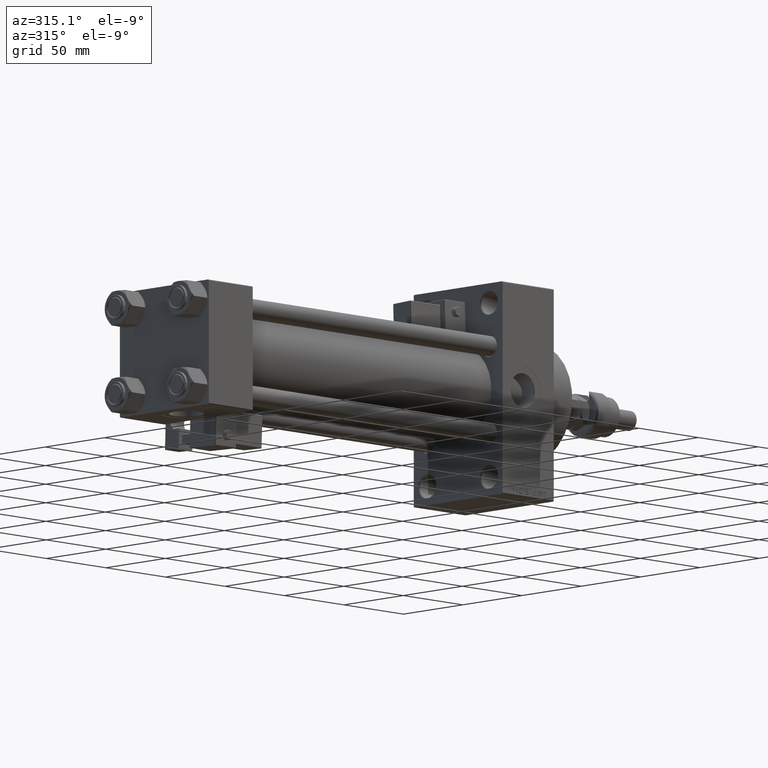
[diagram: clean part render]
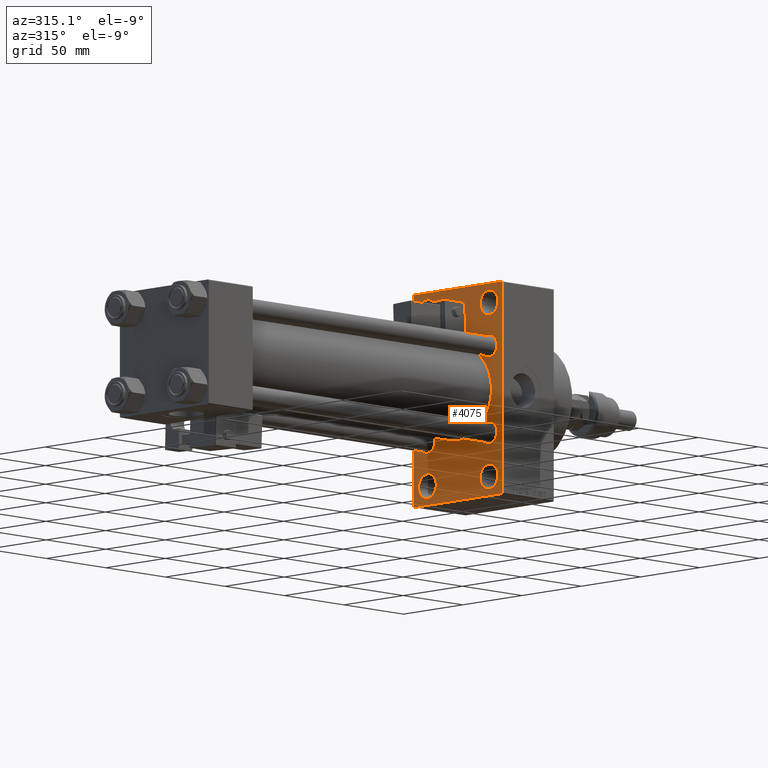
[diagram: same view with one face highlighted and labeled with its STEP entity id]
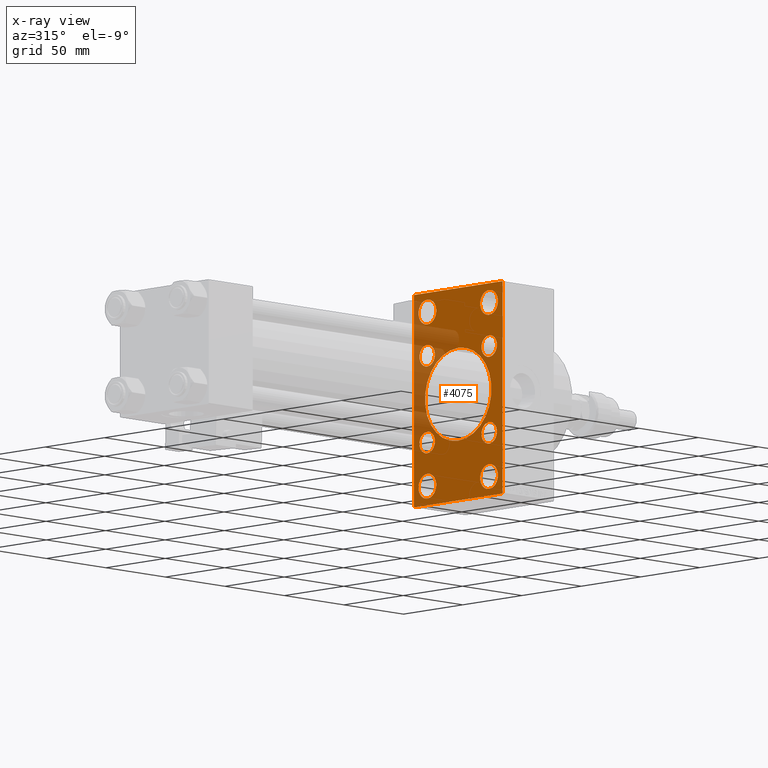
[diagram: x-ray of the same camera — body ghosted, the highlighted face saturated]
A machine part, auxiliary view. The second image highlights one B-rep face of the part: STEP entity #4075.
The next image is the same camera in x-ray: the body ghosted, the highlighted face saturated — about 20% of this face is hidden behind the body in this view.
In plain terms, the highlighted planar face has unit normal (-1, 0, 0).
Its self-contained STEP definition (entity closure, byte-faithful):
#393 = DIRECTION ( 'NONE',  ( 1.000000000000000000, -0.000000000000000000, 0.000000000000000000 ) ) ;
#936 = CIRCLE ( 'NONE', #31764, 7.499999999999951150 ) ;
#1102 = DIRECTION ( 'NONE',  ( 0.000000000000000000, 0.000000000000000000, 1.000000000000000000 ) ) ;
#1702 = AXIS2_PLACEMENT_3D ( 'NONE', #20742, #3084, #15778 ) ;
#1708 = VERTEX_POINT ( 'NONE', #47950 ) ;
#1832 = CARTESIAN_POINT ( 'NONE',  ( 247.0000000000000000, -26.14999999999999147, -26.15000000000000924 ) ) ;
#1906 = CARTESIAN_POINT ( 'NONE',  ( 247.0000000000000000, 26.00000000000000000, 52.49999999999999289 ) ) ;
#1912 = EDGE_CURVE ( 'NONE', #14378, #53678, #44422, .T. ) ;
#2233 = VECTOR ( 'NONE', #38389, 1000.000000000000000 ) ;
#2239 = DIRECTION ( 'NONE',  ( 1.000000000000000000, 0.000000000000000000, 0.000000000000000000 ) ) ;
#2488 = CARTESIAN_POINT ( 'NONE',  ( 247.0000000000000000, 26.00000000000000000, -60.00000000000002842 ) ) ;
#2514 = CARTESIAN_POINT ( 'NONE',  ( 247.0000000000000000, -2.602085213965210642E-15, 0.000000000000000000 ) ) ;
#2717 = CIRCLE ( 'NONE', #33548, 6.500000000000008882 ) ;
#2973 = EDGE_CURVE ( 'NONE', #25952, #12253, #10086, .T. ) ;
#3004 = EDGE_CURVE ( 'NONE', #41212, #53686, #51255, .T. ) ;
#3084 = DIRECTION ( 'NONE',  ( 1.000000000000000000, -0.000000000000000000, 0.000000000000000000 ) ) ;
#3213 = ORIENTED_EDGE ( 'NONE', *, *, #48000, .T. ) ;
#3750 = VERTEX_POINT ( 'NONE', #18319 ) ;
#3804 = CARTESIAN_POINT ( 'NONE',  ( 247.0000000000000000, -50.50000000000054001, -50.49999999999913314 ) ) ;
#4075 = ADVANCED_FACE ( 'NONE', ( #18986, #49036, #27239, #6550, #23385, #44341, #40742, #19803, #15381, #35805 ), #52632, .T. ) ;
#4453 = VERTEX_POINT ( 'NONE', #45096 ) ;
#4776 = DIRECTION ( 'NONE',  ( 1.000000000000000000, -0.000000000000000000, 0.000000000000000000 ) ) ;
#4869 = AXIS2_PLACEMENT_3D ( 'NONE', #1832, #27741, #18675 ) ;
#5862 = CARTESIAN_POINT ( 'NONE',  ( 247.0000000000000000, 26.14999999999999858, -19.64999999999999503 ) ) ;
#6211 = ORIENTED_EDGE ( 'NONE', *, *, #15556, .T. ) ;
#6229 = DIRECTION ( 'NONE',  ( 0.000000000000000000, 0.000000000000000000, 1.000000000000000000 ) ) ;
#6521 = DIRECTION ( 'NONE',  ( -0.000000000000000000, 0.7071067811865524577, 0.7071067811865426878 ) ) ;
#6550 = FACE_BOUND ( 'NONE', #36690, .T. ) ;
#6920 = VERTEX_POINT ( 'NONE', #24168 ) ;
#7560 = ORIENTED_EDGE ( 'NONE', *, *, #12033, .T. ) ;
#7755 = EDGE_CURVE ( 'NONE', #41212, #22244, #11884, .T. ) ;
#8498 = CIRCLE ( 'NONE', #39332, 6.500000000000008882 ) ;
#8530 = VECTOR ( 'NONE', #6521, 1000.000000000000000 ) ;
#8592 = DIRECTION ( 'NONE',  ( -0.000000000000000000, -0.7071067811865574537, -0.7071067811865376918 ) ) ;
#8655 = DIRECTION ( 'NONE',  ( 0.000000000000000000, 0.000000000000000000, 1.000000000000000000 ) ) ;
#8760 = EDGE_LOOP ( 'NONE', ( #7560, #40935 ) ) ;
#8991 = CARTESIAN_POINT ( 'NONE',  ( 247.0000000000000000, 26.00000000000000000, -44.99999999999995737 ) ) ;
#9062 = ORIENTED_EDGE ( 'NONE', *, *, #53732, .T. ) ;
#9080 = CIRCLE ( 'NONE', #34639, 7.499999999999951150 ) ;
#9324 = CARTESIAN_POINT ( 'NONE',  ( 247.0000000000000000, 50.49999999999996447, 50.49999999999996447 ) ) ;
#9504 = EDGE_CURVE ( 'NONE', #53686, #17769, #26341, .T. ) ;
#10086 = CIRCLE ( 'NONE', #27716, 6.500000000000008882 ) ;
#10162 = EDGE_LOOP ( 'NONE', ( #36303, #43326 ) ) ;
#10377 = ORIENTED_EDGE ( 'NONE', *, *, #43969, .T. ) ;
#10725 = CIRCLE ( 'NONE', #17805, 6.500000000000008882 ) ;
#10863 = CARTESIAN_POINT ( 'NONE',  ( 247.0000000000000000, 26.00000000000000000, -52.49999999999999289 ) ) ;
#11693 = CARTESIAN_POINT ( 'NONE',  ( 247.0000000000000000, -37.00000000000001421, 63.99999999999997158 ) ) ;
#11884 = LINE ( 'NONE', #23771, #23522 ) ;
#12033 = EDGE_CURVE ( 'NONE', #53678, #14378, #936, .T. ) ;
#12078 = CARTESIAN_POINT ( 'NONE',  ( 247.0000000000000000, -26.14999999999999147, -32.65000000000001990 ) ) ;
#12110 = ORIENTED_EDGE ( 'NONE', *, *, #31710, .T. ) ;
#12253 = VERTEX_POINT ( 'NONE', #12078 ) ;
#12827 = CIRCLE ( 'NONE', #4869, 6.500000000000008882 ) ;
#12990 = EDGE_CURVE ( 'NONE', #6920, #25399, #29170, .T. ) ;
#13696 = ORIENTED_EDGE ( 'NONE', *, *, #7755, .F. ) ;
#13874 = VERTEX_POINT ( 'NONE', #5862 ) ;
#14023 = CARTESIAN_POINT ( 'NONE',  ( 247.0000000000000000, -26.14999999999999147, -26.15000000000000924 ) ) ;
#14051 = CARTESIAN_POINT ( 'NONE',  ( 247.0000000000000000, 26.14999999999999858, -26.15000000000000213 ) ) ;
#14277 = ORIENTED_EDGE ( 'NONE', *, *, #17127, .T. ) ;
#14287 = EDGE_CURVE ( 'NONE', #38964, #47203, #32753, .T. ) ;
#14378 = VERTEX_POINT ( 'NONE', #29155 ) ;
#14660 = CARTESIAN_POINT ( 'NONE',  ( 247.0000000000000000, -37.49999999999999289, 63.50000000000000000 ) ) ;
#15381 = FACE_BOUND ( 'NONE', #17945, .T. ) ;
#15422 = ORIENTED_EDGE ( 'NONE', *, *, #22301, .T. ) ;
#15523 = CARTESIAN_POINT ( 'NONE',  ( 247.0000000000000000, -26.14999999999999147, 26.15000000000000924 ) ) ;
#15556 = EDGE_CURVE ( 'NONE', #17769, #38964, #32885, .T. ) ;
#15723 = ORIENTED_EDGE ( 'NONE', *, *, #39236, .T. ) ;
#15778 = DIRECTION ( 'NONE',  ( 0.000000000000000000, 0.000000000000000000, 1.000000000000000000 ) ) ;
#15934 = VECTOR ( 'NONE', #8592, 999.9999999999998863 ) ;
#16179 = CIRCLE ( 'NONE', #40801, 7.500000000000034639 ) ;
#16904 = DIRECTION ( 'NONE',  ( 0.000000000000000000, 0.000000000000000000, 1.000000000000000000 ) ) ;
#17101 = DIRECTION ( 'NONE',  ( 1.000000000000000000, -0.000000000000000000, 0.000000000000000000 ) ) ;
#17127 = EDGE_CURVE ( 'NONE', #47203, #48525, #37726, .T. ) ;
#17336 = CIRCLE ( 'NONE', #21693, 6.500000000000008882 ) ;
#17378 = DIRECTION ( 'NONE',  ( 0.000000000000000000, 0.000000000000000000, 1.000000000000000000 ) ) ;
#17769 = VERTEX_POINT ( 'NONE', #53689 ) ;
#17805 = AXIS2_PLACEMENT_3D ( 'NONE', #26922, #44018, #6229 ) ;
#17945 = EDGE_LOOP ( 'NONE', ( #15723, #9062 ) ) ;
#18026 = CIRCLE ( 'NONE', #32984, 7.499999999999951150 ) ;
#18220 = VERTEX_POINT ( 'NONE', #51108 ) ;
#18319 = CARTESIAN_POINT ( 'NONE',  ( 247.0000000000000000, 26.00000000000000000, 59.99999999999994316 ) ) ;
#18509 = CARTESIAN_POINT ( 'NONE',  ( 247.0000000000000000, 8.269258236473784371E-16, -28.00000000000000000 ) ) ;
#18675 = DIRECTION ( 'NONE',  ( 0.000000000000000000, 0.000000000000000000, 1.000000000000000000 ) ) ;
#18986 = FACE_BOUND ( 'NONE', #8760, .T. ) ;
#19070 = DIRECTION ( 'NONE',  ( 0.000000000000000000, 0.000000000000000000, 1.000000000000000000 ) ) ;
#19164 = CARTESIAN_POINT ( 'NONE',  ( 247.0000000000000000, -25.99999999999999645, -52.49999999999999289 ) ) ;
#19803 = FACE_BOUND ( 'NONE', #32574, .T. ) ;
#20094 = VERTEX_POINT ( 'NONE', #45165 ) ;
#20698 = VECTOR ( 'NONE', #21758, 1000.000000000000114 ) ;
#20742 = CARTESIAN_POINT ( 'NONE',  ( 247.0000000000000000, 26.14999999999999858, 26.15000000000000213 ) ) ;
#20822 = CIRCLE ( 'NONE', #34917, 28.00000000000000000 ) ;
#21308 = AXIS2_PLACEMENT_3D ( 'NONE', #19164, #27143, #39822 ) ;
#21693 = AXIS2_PLACEMENT_3D ( 'NONE', #45651, #393, #8655 ) ;
#21758 = DIRECTION ( 'NONE',  ( 0.000000000000000000, 0.7071067811865474617, -0.7071067811865474617 ) ) ;
#22066 = AXIS2_PLACEMENT_3D ( 'NONE', #15523, #49432, #52767 ) ;
#22244 = VERTEX_POINT ( 'NONE', #11693 ) ;
#22301 = EDGE_CURVE ( 'NONE', #4453, #3750, #18026, .T. ) ;
#22347 = DIRECTION ( 'NONE',  ( 1.000000000000000000, -0.000000000000000000, 0.000000000000000000 ) ) ;
#23385 = FACE_BOUND ( 'NONE', #10162, .T. ) ;
#23476 = ORIENTED_EDGE ( 'NONE', *, *, #2973, .T. ) ;
#23503 = ORIENTED_EDGE ( 'NONE', *, *, #9504, .T. ) ;
#23522 = VECTOR ( 'NONE', #40578, 1000.000000000000000 ) ;
#23771 = CARTESIAN_POINT ( 'NONE',  ( 247.0000000000000000, 37.50000000000000000, 63.99999999999998579 ) ) ;
#23790 = CARTESIAN_POINT ( 'NONE',  ( 247.0000000000000000, -2.602085213965210642E-15, 28.00000000000000000 ) ) ;
#23829 = EDGE_LOOP ( 'NONE', ( #31929, #45129 ) ) ;
#24079 = DIRECTION ( 'NONE',  ( 1.000000000000000000, -0.000000000000000000, 0.000000000000000000 ) ) ;
#24168 = CARTESIAN_POINT ( 'NONE',  ( 247.0000000000000000, -25.99999999999999645, -44.99999999999995737 ) ) ;
#24473 = DIRECTION ( 'NONE',  ( 0.000000000000000000, -1.000000000000000000, -1.850371707708594563E-16 ) ) ;
#24774 = ORIENTED_EDGE ( 'NONE', *, *, #49012, .T. ) ;
#25297 = CARTESIAN_POINT ( 'NONE',  ( 247.0000000000000000, -25.99999999999999645, 52.50000000000000000 ) ) ;
#25399 = VERTEX_POINT ( 'NONE', #32658 ) ;
#25461 = CIRCLE ( 'NONE', #1702, 6.500000000000008882 ) ;
#25480 = CARTESIAN_POINT ( 'NONE',  ( 247.0000000000000000, 26.14999999999999858, 26.15000000000000213 ) ) ;
#25885 = CIRCLE ( 'NONE', #32947, 28.00000000000000000 ) ;
#25952 = VERTEX_POINT ( 'NONE', #27030 ) ;
#26341 = LINE ( 'NONE', #36191, #48270 ) ;
#26708 = EDGE_CURVE ( 'NONE', #18220, #35817, #25461, .T. ) ;
#26922 = CARTESIAN_POINT ( 'NONE',  ( 247.0000000000000000, 26.14999999999999858, -26.15000000000000213 ) ) ;
#27030 = CARTESIAN_POINT ( 'NONE',  ( 247.0000000000000000, -26.14999999999999147, -19.65000000000000213 ) ) ;
#27143 = DIRECTION ( 'NONE',  ( 1.000000000000000000, -0.000000000000000000, 0.000000000000000000 ) ) ;
#27239 = FACE_BOUND ( 'NONE', #51542, .T. ) ;
#27253 = ORIENTED_EDGE ( 'NONE', *, *, #26708, .T. ) ;
#27373 = AXIS2_PLACEMENT_3D ( 'NONE', #45865, #24079, #16904 ) ;
#27581 = DIRECTION ( 'NONE',  ( 1.000000000000000000, -0.000000000000000000, 0.000000000000000000 ) ) ;
#27716 = AXIS2_PLACEMENT_3D ( 'NONE', #14023, #47115, #29752 ) ;
#27741 = DIRECTION ( 'NONE',  ( 1.000000000000000000, -0.000000000000000000, 0.000000000000000000 ) ) ;
#27883 = EDGE_CURVE ( 'NONE', #44578, #1708, #32600, .T. ) ;
#28144 = CARTESIAN_POINT ( 'NONE',  ( 247.0000000000000000, 37.50000000000000000, 63.49999999999992895 ) ) ;
#29155 = CARTESIAN_POINT ( 'NONE',  ( 247.0000000000000000, -25.99999999999999645, 45.00000000000004974 ) ) ;
#29170 = CIRCLE ( 'NONE', #27373, 7.500000000000034639 ) ;
#29326 = CARTESIAN_POINT ( 'NONE',  ( 247.0000000000000000, -37.49999999999999289, -63.50000000000002842 ) ) ;
#29752 = DIRECTION ( 'NONE',  ( 0.000000000000000000, 0.000000000000000000, 1.000000000000000000 ) ) ;
#30093 = EDGE_CURVE ( 'NONE', #13874, #20094, #2717, .T. ) ;
#30159 = DIRECTION ( 'NONE',  ( 0.000000000000000000, 0.000000000000000000, 1.000000000000000000 ) ) ;
#30797 = CARTESIAN_POINT ( 'NONE',  ( 247.0000000000000000, -26.14999999999999147, 32.65000000000001990 ) ) ;
#31037 = DIRECTION ( 'NONE',  ( 0.000000000000000000, 0.000000000000000000, 1.000000000000000000 ) ) ;
#31134 = EDGE_LOOP ( 'NONE', ( #31939, #12110 ) ) ;
#31224 = DIRECTION ( 'NONE',  ( 1.000000000000000000, 0.000000000000000000, 0.000000000000000000 ) ) ;
#31687 = DIRECTION ( 'NONE',  ( 1.000000000000000000, -0.000000000000000000, 0.000000000000000000 ) ) ;
#31710 = EDGE_CURVE ( 'NONE', #25399, #6920, #32766, .T. ) ;
#31764 = AXIS2_PLACEMENT_3D ( 'NONE', #37513, #17101, #17378 ) ;
#31929 = ORIENTED_EDGE ( 'NONE', *, *, #30093, .T. ) ;
#31939 = ORIENTED_EDGE ( 'NONE', *, *, #12990, .T. ) ;
#32494 = ORIENTED_EDGE ( 'NONE', *, *, #41456, .F. ) ;
#32574 = EDGE_LOOP ( 'NONE', ( #23476, #51263 ) ) ;
#32600 = CIRCLE ( 'NONE', #22066, 6.500000000000008882 ) ;
#32658 = CARTESIAN_POINT ( 'NONE',  ( 247.0000000000000000, -25.99999999999999645, -60.00000000000002842 ) ) ;
#32753 = LINE ( 'NONE', #50391, #44163 ) ;
#32766 = CIRCLE ( 'NONE', #21308, 7.500000000000034639 ) ;
#32885 = LINE ( 'NONE', #37574, #15934 ) ;
#32947 = AXIS2_PLACEMENT_3D ( 'NONE', #39751, #31224, #40561 ) ;
#32984 = AXIS2_PLACEMENT_3D ( 'NONE', #50854, #4776, #30159 ) ;
#33548 = AXIS2_PLACEMENT_3D ( 'NONE', #14051, #31687, #53470 ) ;
#33922 = ORIENTED_EDGE ( 'NONE', *, *, #36908, .T. ) ;
#34123 = EDGE_CURVE ( 'NONE', #20094, #13874, #10725, .T. ) ;
#34639 = AXIS2_PLACEMENT_3D ( 'NONE', #1906, #22347, #1102 ) ;
#34827 = AXIS2_PLACEMENT_3D ( 'NONE', #48478, #48210, #35535 ) ;
#34917 = AXIS2_PLACEMENT_3D ( 'NONE', #2514, #2239, #52990 ) ;
#34953 = CARTESIAN_POINT ( 'NONE',  ( 247.0000000000000000, 36.99999999999994316, 63.99999999999998579 ) ) ;
#35535 = DIRECTION ( 'NONE',  ( -0.000000000000000000, 0.000000000000000000, 1.000000000000000000 ) ) ;
#35805 = FACE_OUTER_BOUND ( 'NONE', #51783, .T. ) ;
#35817 = VERTEX_POINT ( 'NONE', #44975 ) ;
#36191 = CARTESIAN_POINT ( 'NONE',  ( 247.0000000000000000, 37.50000000000000000, 63.99999999999998579 ) ) ;
#36303 = ORIENTED_EDGE ( 'NONE', *, *, #27883, .T. ) ;
#36690 = EDGE_LOOP ( 'NONE', ( #33922, #15422 ) ) ;
#36908 = EDGE_CURVE ( 'NONE', #3750, #4453, #9080, .T. ) ;
#37394 = AXIS2_PLACEMENT_3D ( 'NONE', #10863, #44529, #31037 ) ;
#37513 = CARTESIAN_POINT ( 'NONE',  ( 247.0000000000000000, -25.99999999999999645, 52.50000000000000000 ) ) ;
#37574 = CARTESIAN_POINT ( 'NONE',  ( 247.0000000000000000, 50.49999999999950973, -50.50000000000090949 ) ) ;
#37698 = EDGE_CURVE ( 'NONE', #50417, #43566, #16179, .T. ) ;
#37726 = LINE ( 'NONE', #3804, #41555 ) ;
#38389 = DIRECTION ( 'NONE',  ( 0.000000000000000000, 0.000000000000000000, -1.000000000000000000 ) ) ;
#38633 = VERTEX_POINT ( 'NONE', #14660 ) ;
#38745 = CARTESIAN_POINT ( 'NONE',  ( 247.0000000000000000, -37.00000000000002132, -64.00000000000001421 ) ) ;
#38964 = VERTEX_POINT ( 'NONE', #46480 ) ;
#39236 = EDGE_CURVE ( 'NONE', #51409, #43104, #25885, .T. ) ;
#39332 = AXIS2_PLACEMENT_3D ( 'NONE', #25480, #49778, #42575 ) ;
#39751 = CARTESIAN_POINT ( 'NONE',  ( 247.0000000000000000, -2.602085213965210642E-15, 0.000000000000000000 ) ) ;
#39822 = DIRECTION ( 'NONE',  ( 0.000000000000000000, 0.000000000000000000, 1.000000000000000000 ) ) ;
#40295 = CARTESIAN_POINT ( 'NONE',  ( 247.0000000000000000, -25.99999999999999645, 59.99999999999995026 ) ) ;
#40561 = DIRECTION ( 'NONE',  ( 0.000000000000000000, 0.000000000000000000, -1.000000000000000000 ) ) ;
#40578 = DIRECTION ( 'NONE',  ( 0.000000000000000000, -1.000000000000000000, -1.850371707708594563E-16 ) ) ;
#40742 = FACE_BOUND ( 'NONE', #23829, .T. ) ;
#40801 = AXIS2_PLACEMENT_3D ( 'NONE', #45235, #27581, #19070 ) ;
#40935 = ORIENTED_EDGE ( 'NONE', *, *, #1912, .T. ) ;
#41212 = VERTEX_POINT ( 'NONE', #34953 ) ;
#41456 = EDGE_CURVE ( 'NONE', #38633, #48525, #51355, .T. ) ;
#41555 = VECTOR ( 'NONE', #50407, 1000.000000000000114 ) ;
#42121 = DIRECTION ( 'NONE',  ( 0.000000000000000000, 0.000000000000000000, 1.000000000000000000 ) ) ;
#42199 = EDGE_CURVE ( 'NONE', #12253, #25952, #12827, .T. ) ;
#42522 = CARTESIAN_POINT ( 'NONE',  ( 247.0000000000000000, -37.49999999999999289, 63.99999999999997158 ) ) ;
#42575 = DIRECTION ( 'NONE',  ( 0.000000000000000000, 0.000000000000000000, 1.000000000000000000 ) ) ;
#43044 = ORIENTED_EDGE ( 'NONE', *, *, #14287, .T. ) ;
#43104 = VERTEX_POINT ( 'NONE', #18509 ) ;
#43169 = DIRECTION ( 'NONE',  ( 0.000000000000000000, -5.421010862427522170E-17, -1.000000000000000000 ) ) ;
#43326 = ORIENTED_EDGE ( 'NONE', *, *, #43941, .T. ) ;
#43535 = CIRCLE ( 'NONE', #37394, 7.500000000000034639 ) ;
#43566 = VERTEX_POINT ( 'NONE', #8991 ) ;
#43855 = EDGE_LOOP ( 'NONE', ( #10377, #27253 ) ) ;
#43941 = EDGE_CURVE ( 'NONE', #1708, #44578, #17336, .T. ) ;
#43969 = EDGE_CURVE ( 'NONE', #35817, #18220, #8498, .T. ) ;
#44018 = DIRECTION ( 'NONE',  ( 1.000000000000000000, -0.000000000000000000, 0.000000000000000000 ) ) ;
#44163 = VECTOR ( 'NONE', #24473, 1000.000000000000000 ) ;
#44341 = FACE_BOUND ( 'NONE', #43855, .T. ) ;
#44422 = CIRCLE ( 'NONE', #49831, 7.499999999999951150 ) ;
#44529 = DIRECTION ( 'NONE',  ( 1.000000000000000000, -0.000000000000000000, 0.000000000000000000 ) ) ;
#44578 = VERTEX_POINT ( 'NONE', #30797 ) ;
#44594 = LINE ( 'NONE', #52603, #8530 ) ;
#44975 = CARTESIAN_POINT ( 'NONE',  ( 247.0000000000000000, 26.14999999999999858, 32.65000000000001990 ) ) ;
#45095 = ORIENTED_EDGE ( 'NONE', *, *, #3004, .T. ) ;
#45096 = CARTESIAN_POINT ( 'NONE',  ( 247.0000000000000000, 26.00000000000000000, 45.00000000000004263 ) ) ;
#45129 = ORIENTED_EDGE ( 'NONE', *, *, #34123, .T. ) ;
#45165 = CARTESIAN_POINT ( 'NONE',  ( 247.0000000000000000, 26.14999999999999858, -32.65000000000001279 ) ) ;
#45235 = CARTESIAN_POINT ( 'NONE',  ( 247.0000000000000000, 26.00000000000000000, -52.49999999999999289 ) ) ;
#45651 = CARTESIAN_POINT ( 'NONE',  ( 247.0000000000000000, -26.14999999999999147, 26.15000000000000924 ) ) ;
#45865 = CARTESIAN_POINT ( 'NONE',  ( 247.0000000000000000, -25.99999999999999645, -52.49999999999999289 ) ) ;
#46480 = CARTESIAN_POINT ( 'NONE',  ( 247.0000000000000000, 37.00000000000004974, -64.00000000000000000 ) ) ;
#47115 = DIRECTION ( 'NONE',  ( 1.000000000000000000, -0.000000000000000000, 0.000000000000000000 ) ) ;
#47203 = VERTEX_POINT ( 'NONE', #38745 ) ;
#47950 = CARTESIAN_POINT ( 'NONE',  ( 247.0000000000000000, -26.14999999999999147, 19.65000000000000213 ) ) ;
#48000 = EDGE_CURVE ( 'NONE', #38633, #22244, #44594, .T. ) ;
#48210 = DIRECTION ( 'NONE',  ( -1.000000000000000000, 0.000000000000000000, -0.000000000000000000 ) ) ;
#48270 = VECTOR ( 'NONE', #43169, 1000.000000000000000 ) ;
#48478 = CARTESIAN_POINT ( 'NONE',  ( 247.0000000000000000, 0.000000000000000000, 0.000000000000000000 ) ) ;
#48525 = VERTEX_POINT ( 'NONE', #29326 ) ;
#49012 = EDGE_CURVE ( 'NONE', #43566, #50417, #43535, .T. ) ;
#49036 = FACE_BOUND ( 'NONE', #31134, .T. ) ;
#49432 = DIRECTION ( 'NONE',  ( 1.000000000000000000, -0.000000000000000000, 0.000000000000000000 ) ) ;
#49778 = DIRECTION ( 'NONE',  ( 1.000000000000000000, -0.000000000000000000, 0.000000000000000000 ) ) ;
#49831 = AXIS2_PLACEMENT_3D ( 'NONE', #25297, #50139, #42121 ) ;
#50139 = DIRECTION ( 'NONE',  ( 1.000000000000000000, -0.000000000000000000, 0.000000000000000000 ) ) ;
#50391 = CARTESIAN_POINT ( 'NONE',  ( 247.0000000000000000, 37.49999999999999289, -64.00000000000000000 ) ) ;
#50407 = DIRECTION ( 'NONE',  ( 0.000000000000000000, -0.7071067811865376918, 0.7071067811865573427 ) ) ;
#50417 = VERTEX_POINT ( 'NONE', #2488 ) ;
#50854 = CARTESIAN_POINT ( 'NONE',  ( 247.0000000000000000, 26.00000000000000000, 52.49999999999999289 ) ) ;
#51108 = CARTESIAN_POINT ( 'NONE',  ( 247.0000000000000000, 26.14999999999999858, 19.64999999999999147 ) ) ;
#51255 = LINE ( 'NONE', #9324, #20698 ) ;
#51263 = ORIENTED_EDGE ( 'NONE', *, *, #42199, .T. ) ;
#51355 = LINE ( 'NONE', #42522, #2233 ) ;
#51409 = VERTEX_POINT ( 'NONE', #23790 ) ;
#51542 = EDGE_LOOP ( 'NONE', ( #24774, #53163 ) ) ;
#51783 = EDGE_LOOP ( 'NONE', ( #43044, #14277, #32494, #3213, #13696, #45095, #23503, #6211 ) ) ;
#52603 = CARTESIAN_POINT ( 'NONE',  ( 247.0000000000000000, -50.49999999999972999, 50.50000000000042633 ) ) ;
#52632 = PLANE ( 'NONE',  #34827 ) ;
#52767 = DIRECTION ( 'NONE',  ( 0.000000000000000000, 0.000000000000000000, 1.000000000000000000 ) ) ;
#52990 = DIRECTION ( 'NONE',  ( 0.000000000000000000, 0.000000000000000000, -1.000000000000000000 ) ) ;
#53163 = ORIENTED_EDGE ( 'NONE', *, *, #37698, .T. ) ;
#53470 = DIRECTION ( 'NONE',  ( 0.000000000000000000, 0.000000000000000000, 1.000000000000000000 ) ) ;
#53678 = VERTEX_POINT ( 'NONE', #40295 ) ;
#53686 = VERTEX_POINT ( 'NONE', #28144 ) ;
#53689 = CARTESIAN_POINT ( 'NONE',  ( 247.0000000000000000, 37.49999999999999289, -63.50000000000007105 ) ) ;
#53732 = EDGE_CURVE ( 'NONE', #43104, #51409, #20822, .T. ) ;